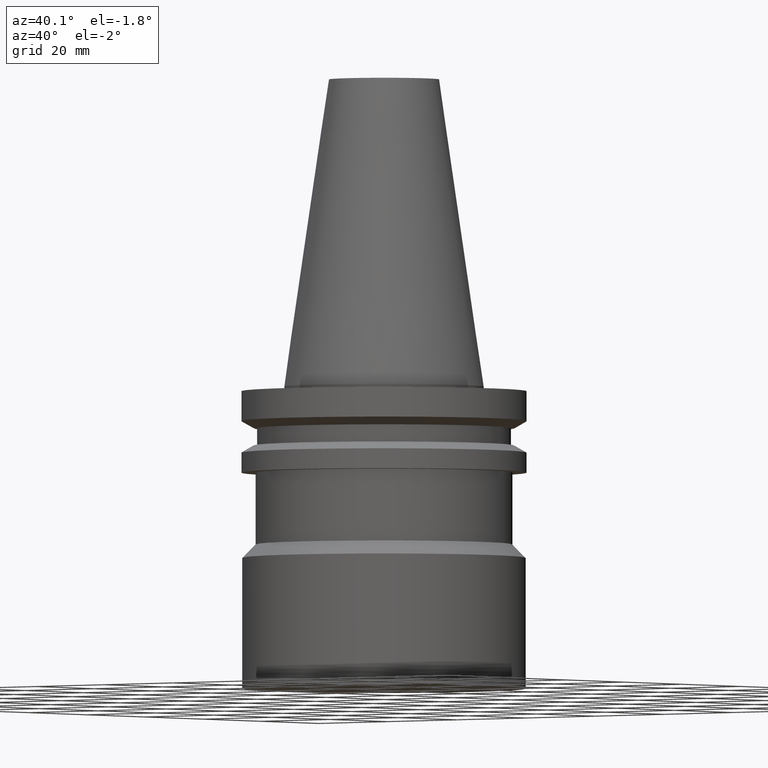
[diagram: clean part render]
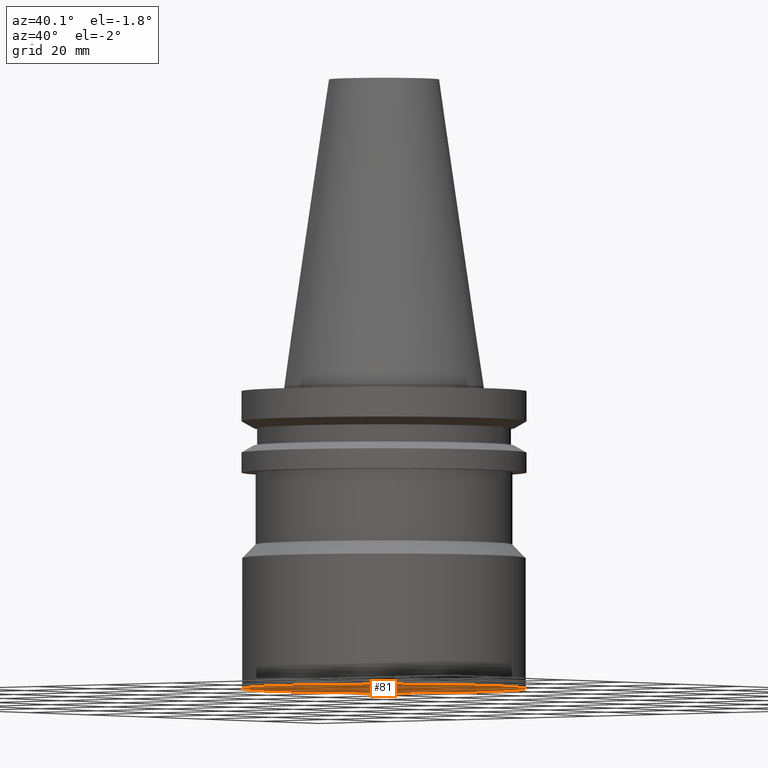
[diagram: same view with one face highlighted and labeled with its STEP entity id]
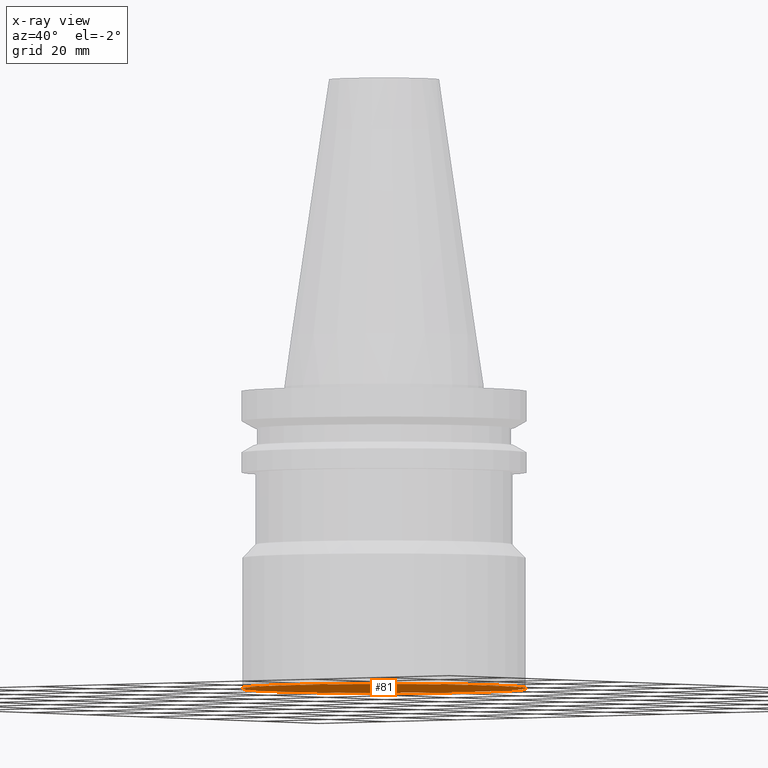
[diagram: x-ray of the same camera — body ghosted, the highlighted face saturated]
A machine part, auxiliary view. The second image highlights one B-rep face of the part: STEP entity #81.
The next image is the same camera in x-ray: the body ghosted, the highlighted face saturated — about 0% of this face is hidden behind the body in this view.
In plain terms, the highlighted planar face has unit normal (0, -0, -1).
Its self-contained STEP definition (entity closure, byte-faithful):
#61=EDGE_CURVE('Unnamed[1]',#161,#161,#162,.T.);
#81=ADVANCED_FACE('Unnamed[1]',(#190),#191,.T.);
#161=VERTEX_POINT('',#296);
#162=CIRCLE('',#297,31.5);
#190=FACE_OUTER_BOUND('',#332,.T.);
#191=PLANE('',#333);
#296=CARTESIAN_POINT('',(4.10256677714362E-015,31.4999999999999,-66.9999999999998));
#297=AXIS2_PLACEMENT_3D('',#451,#452,#453);
#332=EDGE_LOOP('',(#480));
#333=AXIS2_PLACEMENT_3D('',#481,#482,#483);
#451=CARTESIAN_POINT('',(4.10256677714362E-015,-2.51500577025434E-014,-66.9999999999998));
#452=DIRECTION('',(6.12323399573677E-017,-1.22344063254662E-016,-1.0));
#453=DIRECTION('',(2.66426054220543E-033,1.0,-1.22344063254662E-016));
#480=ORIENTED_EDGE('',*,*,#61,.T.);
#481=CARTESIAN_POINT('',(4.10256677714362E-015,15.75,-66.9999999999998));
#482=DIRECTION('',(6.12323399573677E-017,-1.68208829979346E-015,-1.0));
#483=DIRECTION('',(9.81710498804946E-032,1.0,-1.68208829979346E-015));